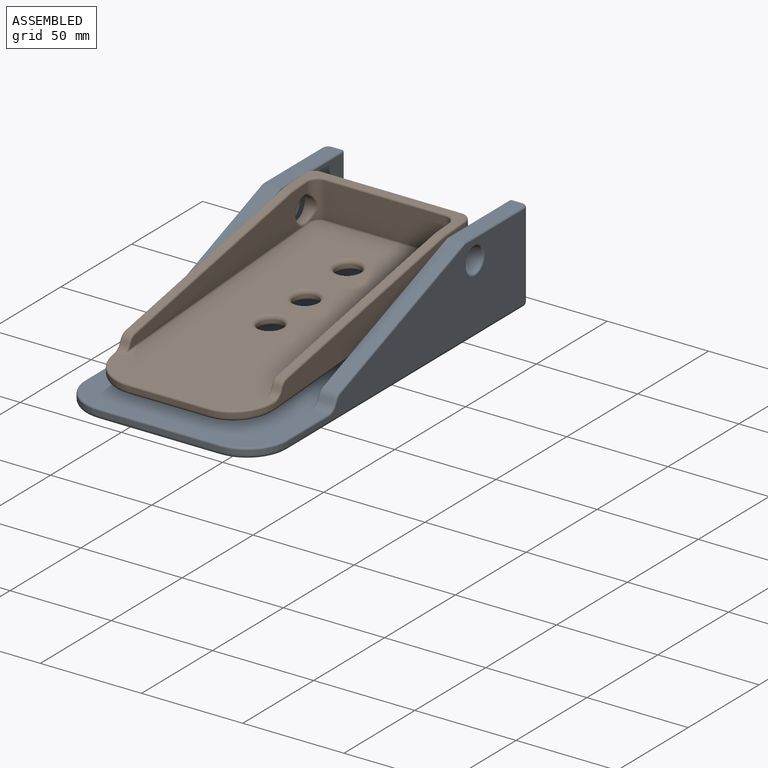
[diagram: assembled view]
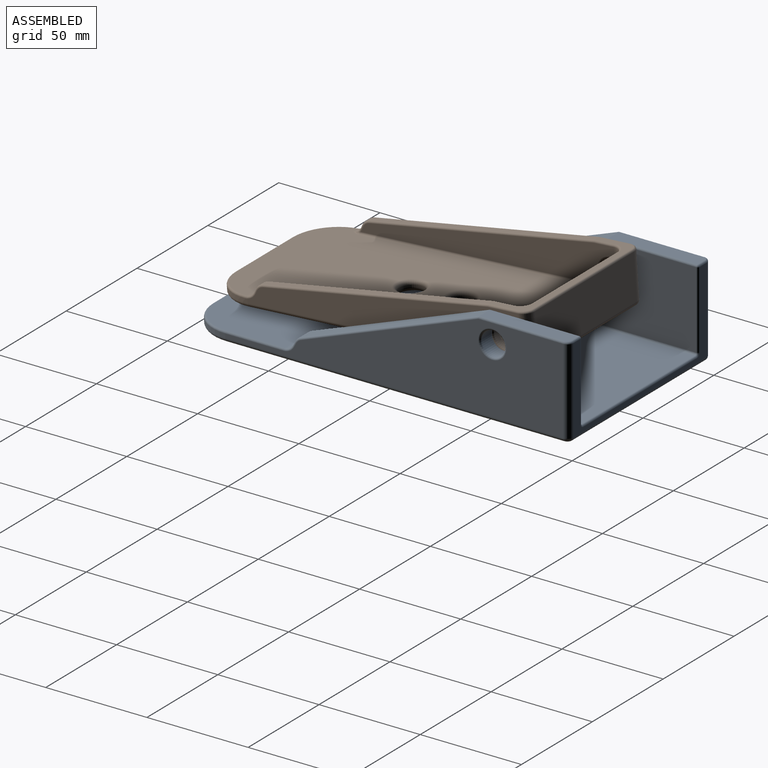
[diagram: assembled view, second angle]
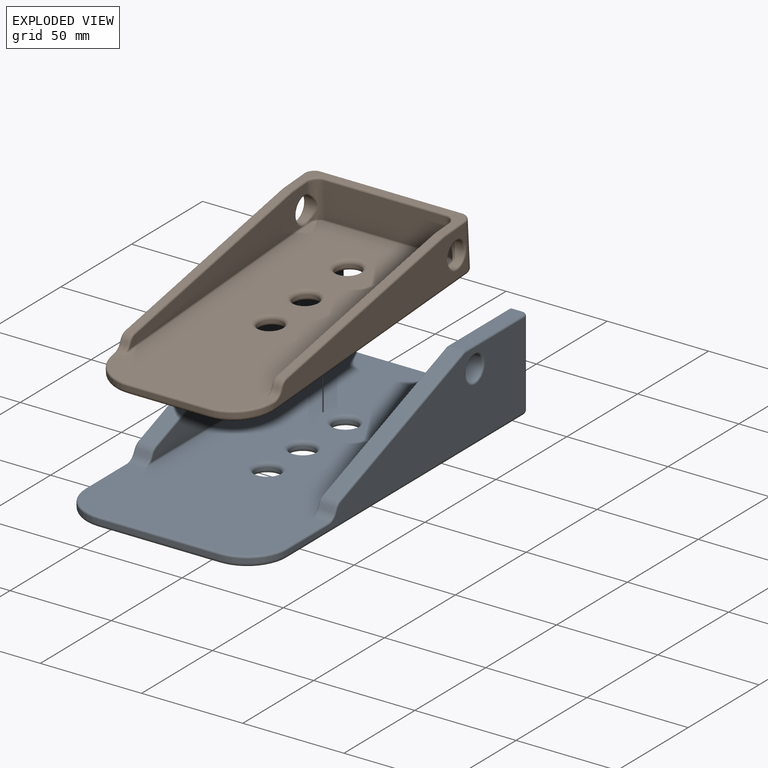
[diagram: exploded view]
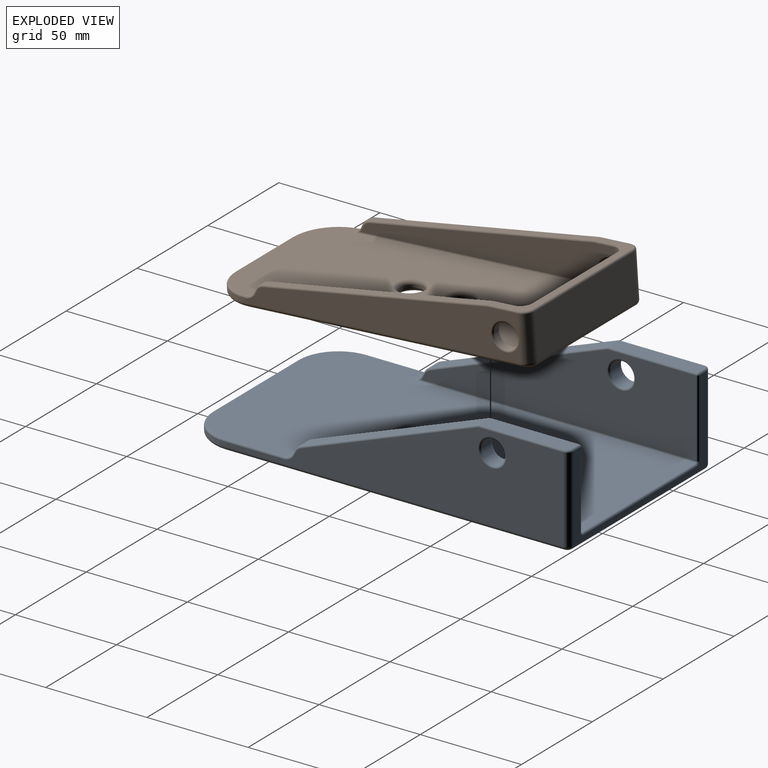
[diagram: exploded view, second angle]
ASSEMBLY  parts=2 mates=2
PART A: 91 faces, bbox 103.3x191.9x45 mm
  f0: plane 188x98mm, normal (0,0,1), area 15149.9mm2, adj f16,f18,f29,f31,f33,f35,f37,f51
  f1: plane 167x42mm, normal (1,0,0), area 3941.2mm2, adj f7,f20,f27,f37,f42,f46,f50,f54
  f2: plane 94x42mm, normal (0,1,0), area 589.7mm2, adj f20,f21,f49,f57,f58,f60,f64,f65
  f3: plane 167x42mm, normal (-1,0,0), area 3941.2mm2, adj f6,f21,f24,f28,f29,f30,f32,f34
  f4: plane 60x2mm, normal (0,-1,0), area 120mm2, adj f6,f7,f33,f76
  f5: plane 186x96mm, normal (0,0,-1), area 17113.3mm2, adj f74,f75,f76,f77,f78,f79,f80,f81
  f6: cylinder r=20mm len=20mm, axis (0,0,1), area 62.8mm2, adj f3,f4,f31,f74
  f7: cylinder r=20mm len=20mm, axis (0,0,-1), area 62.8mm2, adj f1,f4,f35,f78
  f8: plane 7x2.03mm, normal (0,-0.88,0.47), area 16.2mm2, adj f18,f19,f46,f72
  f9: plane 43.82x7mm, normal (0,0,1), area 305.9mm2, adj f53,f54,f58,f62,f63
  f10: plane 87.83x32.96mm, normal (0,-0.35,0.94), area 656.7mm2, adj f19,f55,f63,f68
  f11: plane 135.67x38mm, normal (-1,0,0), area 3413.1mm2, adj f25,f62,f65,f68,f69,f70,f72,f73
  f12: plane 7x2.03mm, normal (0,-0.88,0.47), area 16.2mm2, adj f16,f17,f30,f43
  f13: plane 87.83x32.96mm, normal (0,-0.35,0.94), area 656.7mm2, adj f17,f34,f39,f40
  f14: plane 43.82x7mm, normal (0,0,1), area 305.9mm2, adj f40,f41,f45,f48,f49
  f15: plane 135.67x38mm, normal (1,0,0), area 3413.1mm2, adj f26,f38,f39,f43,f47,f48,f56,f57
  f16: cylinder r=5mm len=7mm, axis (1,0,0), area 37.7mm2, adj f0,f12,f28,f47
  f17: cylinder r=5mm len=7mm, axis (-1,0,0), area 25.1mm2, adj f12,f13,f32,f38
  f18: cylinder r=5mm len=7mm, axis (1,0,0), area 37.7mm2, adj f0,f8,f42,f73
  f19: cylinder r=5mm len=7mm, axis (1,0,0), area 25.1mm2, adj f8,f10,f50,f70
  f20: cylinder r=3mm len=42mm, axis (0,0,1), area 197.9mm2, adj f1,f2,f53,f81
  f21: cylinder r=3mm len=42mm, axis (0,0,-1), area 197.9mm2, adj f2,f3,f45,f77
  f22: cylinder r=6mm len=12mm, axis (1,0,0), area 263.9mm2, adj f24,f26
  f23: cylinder r=6mm len=12mm, axis (1,0,0), area 263.9mm2, adj f25,f27
  f24: torus R=7mm, axis (1,0,0), area 62.8mm2, adj f3,f22
  f25: torus R=7mm, axis (1,0,0), area 62.8mm2, adj f11,f23
  f26: torus R=7mm, axis (-1,0,0), area 62.8mm2, adj f15,f22
  f27: torus R=7mm, axis (1,0,0), area 62.8mm2, adj f1,f23
  f28: torus R=6mm, axis (1,0,0), area 9.1mm2, adj f3,f16,f29,f30
  f29: cylinder r=1mm len=28.86mm, axis (0,1,0), area 45.3mm2, adj f0,f3,f28,f31
  f30: cylinder r=1mm len=2.51mm, axis (0,-0.47,-0.88), area 3.6mm2, adj f3,f12,f28,f32
  f31: torus R=19mm, axis (0,0,1), area 48.5mm2, adj f0,f6,f29,f33
  f32: torus R=4mm, axis (1,0,0), area 5.2mm2, adj f3,f17,f30,f34
  f33: cylinder r=1mm len=60mm, axis (-1,0,0), area 94.2mm2, adj f0,f4,f31,f35
  f34: cylinder r=1mm len=88.18mm, axis (0,-0.94,-0.35), area 147.4mm2, adj f3,f13,f32,f36
  f35: torus R=19mm, axis (0,0,1), area 48.5mm2, adj f0,f7,f33,f37
  f36: sphere r=1mm, area 0.4mm2, adj f34,f40,f41
  f37: cylinder r=1mm len=28.86mm, axis (0,-1,0), area 45.3mm2, adj f0,f1,f35,f42
  f38: torus R=4mm, axis (-1,0,0), area 5.2mm2, adj f15,f17,f39,f43
  f39: cylinder r=1mm len=88.18mm, axis (0,-0.94,-0.35), area 147.4mm2, adj f13,f15,f38,f44
  f40: cylinder r=1mm len=7mm, axis (-1,0,0), area 2.5mm2, adj f13,f14,f36,f44
  f41: cylinder r=1mm len=41.82mm, axis (0,-1,0), area 65.7mm2, adj f3,f14,f36,f45
  f42: torus R=6mm, axis (1,0,0), area 9.1mm2, adj f1,f18,f37,f46
  f43: cylinder r=1mm len=2.51mm, axis (0,-0.47,-0.88), area 3.6mm2, adj f12,f15,f38,f47
  f44: sphere r=1mm, area 0.4mm2, adj f39,f40,f48
  f45: torus R=2mm, axis (0,0,1), area 6.5mm2, adj f14,f21,f41,f49
  f46: cylinder r=1mm len=2.51mm, axis (0,-0.47,-0.88), area 3.6mm2, adj f1,f8,f42,f50
  f47: torus R=6mm, axis (-1,0,0), area 4.9mm2, adj f15,f16,f43,f51
  f48: cylinder r=1mm len=43.82mm, axis (0,-1,0), area 68.8mm2, adj f14,f15,f44,f52
  f49: cylinder r=1mm len=5mm, axis (1,0,0), area 7.9mm2, adj f2,f14,f45,f52
  f50: torus R=4mm, axis (1,0,0), area 5.2mm2, adj f1,f19,f46,f55
  f51: bspline ~4.47x2mm, area 3.8mm2, adj f0,f47,f56
  f52: sphere r=1mm, area 1.6mm2, adj f48,f49,f57
  f53: torus R=2mm, axis (0,0,-1), area 6.5mm2, adj f9,f20,f54,f58
  f54: cylinder r=1mm len=41.82mm, axis (0,-1,0), area 65.7mm2, adj f1,f9,f53,f59
  f55: cylinder r=1mm len=88.18mm, axis (0,-0.94,-0.35), area 147.4mm2, adj f1,f10,f50,f59
  f56: cylinder r=1mm len=135.67mm, axis (0,-1,0), area 213.1mm2, adj f0,f15,f51,f60
  f57: cylinder r=1mm len=38mm, axis (0,0,-1), area 59.7mm2, adj f2,f15,f52,f60
  f58: cylinder r=1mm len=5mm, axis (1,0,0), area 7.9mm2, adj f2,f9,f53,f61
  f59: sphere r=1mm, area 0.4mm2, adj f54,f55,f63
  f60: torus R=2mm, axis (0,-1,0), area 3.4mm2, adj f2,f56,f57,f64
  f61: sphere r=1mm, area 1.6mm2, adj f58,f62,f65
  f62: cylinder r=1mm len=43.82mm, axis (0,1,0), area 68.8mm2, adj f9,f11,f61,f66
  f63: cylinder r=1mm len=7mm, axis (1,0,0), area 2.5mm2, adj f9,f10,f59,f66
  f64: cylinder r=1mm len=80mm, axis (1,0,0), area 125.7mm2, adj f0,f2,f60,f67
  f65: cylinder r=1mm len=38mm, axis (0,0,-1), area 59.7mm2, adj f2,f11,f61,f67
  f66: sphere r=1mm, area 0.4mm2, adj f62,f63,f68
  f67: torus R=2mm, axis (0,-1,0), area 3.4mm2, adj f2,f64,f65,f69
  f68: cylinder r=1mm len=88.18mm, axis (0,0.94,0.35), area 147.4mm2, adj f10,f11,f66,f70
  f69: cylinder r=1mm len=135.67mm, axis (0,-1,0), area 213.1mm2, adj f0,f11,f67,f71
  f70: torus R=4mm, axis (1,0,0), area 5.2mm2, adj f11,f19,f68,f72
  f71: bspline ~5.15x2mm, area 3.8mm2, adj f0,f69,f73
  f72: cylinder r=1mm len=2.51mm, axis (0,0.47,0.88), area 3.6mm2, adj f8,f11,f70,f73
  f73: torus R=6mm, axis (1,0,0), area 4.9mm2, adj f11,f18,f71,f72
  f74: torus R=18mm, axis (0,0,1), area 95.1mm2, adj f5,f6,f75,f76
  f75: cylinder r=2mm len=167mm, axis (0,-1,0), area 524.6mm2, adj f3,f5,f74,f77
  f76: cylinder r=2mm len=60mm, axis (1,0,0), area 188.5mm2, adj f4,f5,f74,f78
  f77: torus R=1mm, axis (0,0,1), area 11.2mm2, adj f5,f21,f75,f79
  f78: torus R=18mm, axis (0,0,1), area 95.1mm2, adj f5,f7,f76,f80
  f79: cylinder r=2mm len=94mm, axis (-1,0,0), area 295.3mm2, adj f2,f5,f77,f81
  f80: cylinder r=2mm len=167mm, axis (0,1,0), area 524.6mm2, adj f1,f5,f78,f81
  f81: torus R=1mm, axis (0,0,1), area 11.2mm2, adj f5,f20,f79,f80
  f82: cylinder r=6mm len=12mm, axis (0,0,1), area 37.7mm2, adj f87,f90
  f83: cylinder r=6mm len=12mm, axis (0,0,1), area 37.7mm2, adj f86,f89
  f84: cylinder r=6mm len=12mm, axis (0,0,1), area 37.7mm2, adj f85,f88
  f85: torus R=8mm, axis (0,0,1), area 132.8mm2, adj f5,f84
  f86: torus R=8mm, axis (0,0,1), area 132.8mm2, adj f5,f83
  f87: torus R=8mm, axis (0,0,1), area 132.8mm2, adj f5,f82
  f88: torus R=8mm, axis (0,0,1), area 132.8mm2, adj f0,f84
  f89: torus R=8mm, axis (0,0,1), area 132.8mm2, adj f0,f83
  f90: torus R=8mm, axis (0,0,1), area 132.8mm2, adj f0,f82
PART B: 97 faces, bbox 83.5x162.3x25.3 mm
  f0: plane 153.25x78.18mm, normal (0,0,1), area 9824.5mm2, adj f18,f20,f35,f37,f40,f48,f52,f56
  f1: plane 126.67x18mm, normal (-1,0,0), area 1358.5mm2, adj f16,f28,f39,f42,f43,f47,f52,f55
  f2: plane 126.67x18mm, normal (1,0,0), area 1358.5mm2, adj f17,f30,f69,f73,f75,f76,f77,f79
  f3: plane 135x22mm, normal (1,0,0), area 1933.5mm2, adj f9,f22,f31,f32,f34,f36,f38,f45
  f4: plane 70x22mm, normal (0,1,0), area 1540mm2, adj f22,f23,f54,f85
  f5: plane 135x22mm, normal (-1,0,0), area 1933.5mm2, adj f8,f23,f26,f49,f53,f57,f61,f62
  f6: plane 40x2mm, normal (0,-1,0), area 80mm2, adj f8,f9,f37,f82
  f7: plane 156x76mm, normal (0,0,-1), area 11109.9mm2, adj f80,f81,f82,f83,f84,f85,f86,f87
  f8: cylinder r=20mm len=20mm, axis (0,0,1), area 62.9mm2, adj f5,f6,f40,f44,f80
  f9: cylinder r=20mm len=20mm, axis (0,0,-1), area 62.9mm2, adj f3,f6,f33,f35,f84
  f10: plane 3x1.4mm, normal (0,-0.88,0.47), area 4.8mm2, adj f20,f21,f34,f39
  f11: plane 78x18.94mm, normal (0,0,1), area 338.2mm2, adj f45,f46,f50,f54,f55,f58,f59,f62
  f12: plane 112.12x13.37mm, normal (0,-0.12,0.99), area 338.7mm2, adj f21,f38,f46,f47
  f13: plane 3x1.4mm, normal (0,-0.88,0.47), area 4.8mm2, adj f18,f19,f53,f77
  f14: plane 112.12x13.37mm, normal (0,-0.12,0.99), area 338.7mm2, adj f19,f61,f68,f73
  f15: plane 60x18mm, normal (0,-1,0), area 1080mm2, adj f16,f17,f63,f67
  f16: cylinder r=5mm len=18mm, axis (0,0,-1), area 95.4mm2, adj f1,f15,f27,f59,f64
  f17: cylinder r=5mm len=18mm, axis (0,0,1), area 95.4mm2, adj f2,f15,f29,f66,f70
  f18: cylinder r=5mm len=4.4mm, axis (1,0,0), area 16.1mm2, adj f0,f13,f44,f49,f79
  f19: cylinder r=5mm len=3.81mm, axis (-1,0,0), area 14.4mm2, adj f13,f14,f57,f75
  f20: cylinder r=5mm len=4.4mm, axis (1,0,0), area 16.1mm2, adj f0,f10,f32,f33,f43
  f21: cylinder r=5mm len=3.81mm, axis (1,0,0), area 14.4mm2, adj f10,f12,f36,f42
  f22: cylinder r=5mm len=22mm, axis (0,0,1), area 172.8mm2, adj f3,f4,f50,f87
  f23: cylinder r=5mm len=22mm, axis (0,0,-1), area 172.8mm2, adj f4,f5,f58,f83
  f24: cylinder r=6mm len=12mm, axis (1,0,0), area 133.7mm2, adj f26,f29,f30
  f25: cylinder r=6mm len=12mm, axis (1,0,0), area 133.7mm2, adj f27,f28,f31
  f26: torus R=7mm, axis (1,0,0), area 62.8mm2, adj f5,f24
  f27: bspline ~13.88x5.35mm, area 17.5mm2, adj f16,f25,f28,f60
  f28: torus R=7mm, axis (1,0,0), area 36.3mm2, adj f1,f25,f27,f56
  f29: bspline ~13.88x5.35mm, area 17.5mm2, adj f17,f24,f30,f72
  f30: torus R=7mm, axis (-1,0,0), area 36.3mm2, adj f2,f24,f29,f74
  f31: torus R=7mm, axis (1,0,0), area 62.8mm2, adj f3,f25
  f32: torus R=6mm, axis (1,0,0), area 7.5mm2, adj f3,f20,f33,f34
  f33: bspline ~3.92x1.43mm, area 1.7mm2, adj f9,f20,f32,f35
  f34: cylinder r=1mm len=1.87mm, axis (0,-0.47,-0.88), area 2.5mm2, adj f3,f10,f32,f36
  f35: torus R=19mm, axis (0,0,1), area 46.6mm2, adj f0,f9,f33,f37
  f36: torus R=4mm, axis (1,0,0), area 7mm2, adj f3,f21,f34,f38
  f37: cylinder r=1mm len=40mm, axis (-1,0,0), area 62.8mm2, adj f0,f6,f35,f40
  f38: cylinder r=1mm len=112.23mm, axis (0,-0.99,-0.12), area 177.4mm2, adj f3,f12,f36,f41
  f39: cylinder r=1mm len=1.87mm, axis (0,0.47,0.88), area 2.5mm2, adj f1,f10,f42,f43
  f40: torus R=19mm, axis (0,0,1), area 46.6mm2, adj f0,f8,f37,f44
  f41: sphere r=1mm, area 0.1mm2, adj f38,f45,f46
  f42: torus R=4mm, axis (1,0,0), area 7mm2, adj f1,f21,f39,f47
  f43: torus R=6mm, axis (1,0,0), area 5.4mm2, adj f1,f20,f39,f48
  f44: bspline ~3.92x1.43mm, area 1.7mm2, adj f8,f18,f40,f49
  f45: cylinder r=1mm len=14.94mm, axis (0,-1,0), area 23.5mm2, adj f3,f11,f41,f50
  f46: cylinder r=1mm len=3mm, axis (1,0,0), area 0.4mm2, adj f11,f12,f41,f51
  f47: cylinder r=1mm len=112.23mm, axis (0,0.99,0.12), area 177.4mm2, adj f1,f12,f42,f51
  f48: bspline ~5.15x2mm, area 2.5mm2, adj f0,f43,f52
  f49: torus R=6mm, axis (1,0,0), area 7.5mm2, adj f5,f18,f44,f53
  f50: torus R=4mm, axis (0,0,-1), area 11.4mm2, adj f11,f22,f45,f54
  f51: sphere r=1mm, area 0.1mm2, adj f46,f47,f55
  f52: cylinder r=1mm len=122.07mm, axis (0,-1,0), area 191.7mm2, adj f0,f1,f48,f56
  f53: cylinder r=1mm len=1.87mm, axis (0,-0.47,-0.88), area 2.5mm2, adj f5,f13,f49,f57
  f54: cylinder r=1mm len=70mm, axis (1,0,0), area 110mm2, adj f4,f11,f50,f58
  f55: cylinder r=1mm len=9.94mm, axis (0,1,0), area 15.6mm2, adj f1,f11,f51,f59
  f56: bspline ~6.05x1.13mm, area 6.3mm2, adj f0,f28,f52,f60
  f57: torus R=4mm, axis (1,0,0), area 7mm2, adj f5,f19,f53,f61
  f58: torus R=4mm, axis (0,0,-1), area 11.4mm2, adj f11,f23,f54,f62
  f59: torus R=6mm, axis (0,0,-1), area 13.2mm2, adj f11,f16,f55,f63
  f60: bspline ~2.44x1.38mm, area 0.8mm2, adj f0,f27,f56,f64
  f61: cylinder r=1mm len=112.23mm, axis (0,-0.99,-0.12), area 177.4mm2, adj f5,f14,f57,f65
  f62: cylinder r=1mm len=14.94mm, axis (0,1,0), area 23.5mm2, adj f5,f11,f58,f65
  f63: cylinder r=1mm len=60mm, axis (-1,0,0), area 94.2mm2, adj f11,f15,f59,f66
  f64: torus R=4mm, axis (0,0,1), area 10.7mm2, adj f0,f16,f60,f67
  f65: sphere r=1mm, area 0.1mm2, adj f61,f62,f68
  f66: torus R=6mm, axis (0,0,-1), area 13.2mm2, adj f11,f17,f63,f69
  f67: cylinder r=1mm len=60mm, axis (-1,0,0), area 94.2mm2, adj f0,f15,f64,f70
  f68: cylinder r=1mm len=3mm, axis (1,0,0), area 0.4mm2, adj f11,f14,f65,f71
  f69: cylinder r=1mm len=9.94mm, axis (0,1,0), area 15.6mm2, adj f2,f11,f66,f71
  f70: torus R=4mm, axis (0,0,1), area 10.7mm2, adj f0,f17,f67,f72
  f71: sphere r=1mm, area 0.1mm2, adj f68,f69,f73
  f72: bspline ~1.06x1.05mm, area 0.8mm2, adj f0,f29,f70,f74
  f73: cylinder r=1mm len=112.23mm, axis (0,-0.99,-0.12), area 177.4mm2, adj f2,f14,f71,f75
  f74: bspline ~5.78x1.24mm, area 6.3mm2, adj f0,f30,f72,f76
  f75: torus R=4mm, axis (-1,0,0), area 7mm2, adj f2,f19,f73,f77
  f76: cylinder r=1mm len=122.07mm, axis (0,-1,0), area 191.7mm2, adj f0,f2,f74,f78
  f77: cylinder r=1mm len=1.87mm, axis (0,-0.47,-0.88), area 2.5mm2, adj f2,f13,f75,f79
  f78: bspline ~5.15x2mm, area 2.5mm2, adj f0,f76,f79
  f79: torus R=6mm, axis (-1,0,0), area 5.4mm2, adj f2,f18,f77,f78
  f80: torus R=18mm, axis (0,0,1), area 95.1mm2, adj f7,f8,f81,f82
  f81: cylinder r=2mm len=135mm, axis (0,-1,0), area 424.1mm2, adj f5,f7,f80,f83
  f82: cylinder r=2mm len=40mm, axis (1,0,0), area 125.7mm2, adj f6,f7,f80,f84
  f83: torus R=3mm, axis (0,0,1), area 21.1mm2, adj f7,f23,f81,f85
  f84: torus R=18mm, axis (0,0,1), area 95.1mm2, adj f7,f9,f82,f86
  f85: cylinder r=2mm len=70mm, axis (-1,0,0), area 219.9mm2, adj f4,f7,f83,f87
  f86: cylinder r=2mm len=135mm, axis (0,1,0), area 424.1mm2, adj f3,f7,f84,f87
  f87: torus R=3mm, axis (0,0,1), area 21.1mm2, adj f7,f22,f85,f86
  f88: cylinder r=6mm len=12mm, axis (0,0,1), area 37.7mm2, adj f93,f96
  f89: cylinder r=6mm len=12mm, axis (0,0,1), area 37.7mm2, adj f92,f95
  f90: cylinder r=6mm len=12mm, axis (0,0,1), area 37.7mm2, adj f91,f94
  f91: torus R=8mm, axis (0,0,1), area 132.8mm2, adj f7,f90
  f92: torus R=8mm, axis (0,0,1), area 132.8mm2, adj f7,f89
  f93: torus R=8mm, axis (0,0,1), area 132.8mm2, adj f7,f88
  f94: torus R=8mm, axis (0,0,1), area 132.8mm2, adj f0,f90
  f95: torus R=8mm, axis (0,0,1), area 132.8mm2, adj f0,f89
  f96: torus R=8mm, axis (0,0,1), area 132.8mm2, adj f0,f88
PLACE A t=(-21.31,53.66,-66.03)mm fixed
PLACE B rot(axis=(1,0,0),3.9deg) t=(-20.31,28.48,-43.19)mm
MATE cylindrical B.f31 <-> A.f27  axis (1,0,0) through (19.69,15.66,-31.53)mm
MATE planar B.f3 <-> A.f11  axis (1,0,0) through (19.69,-48.52,-31.07)mm
